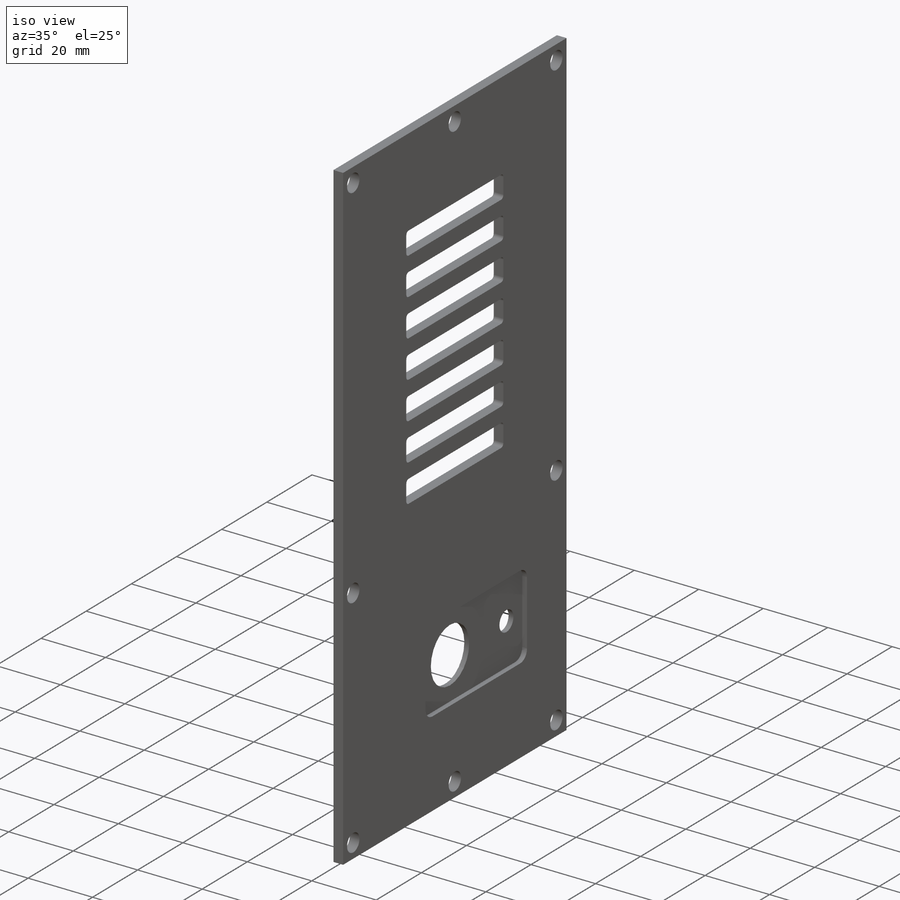
[diagram: iso view]
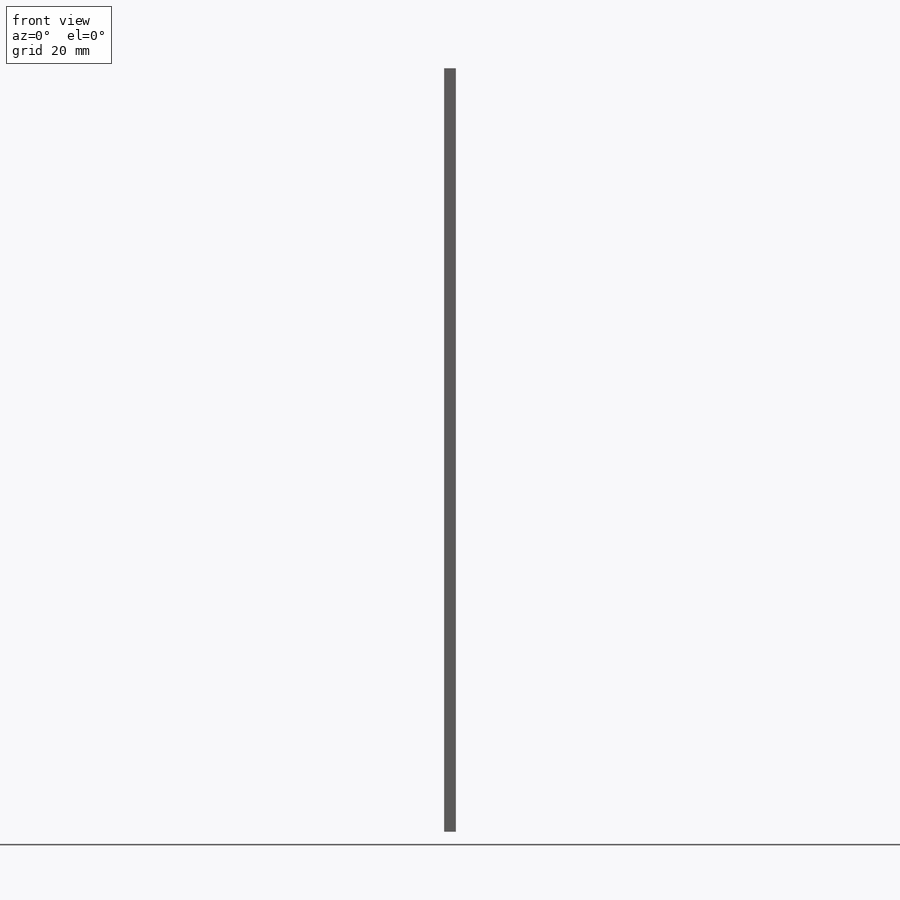
[diagram: front view]
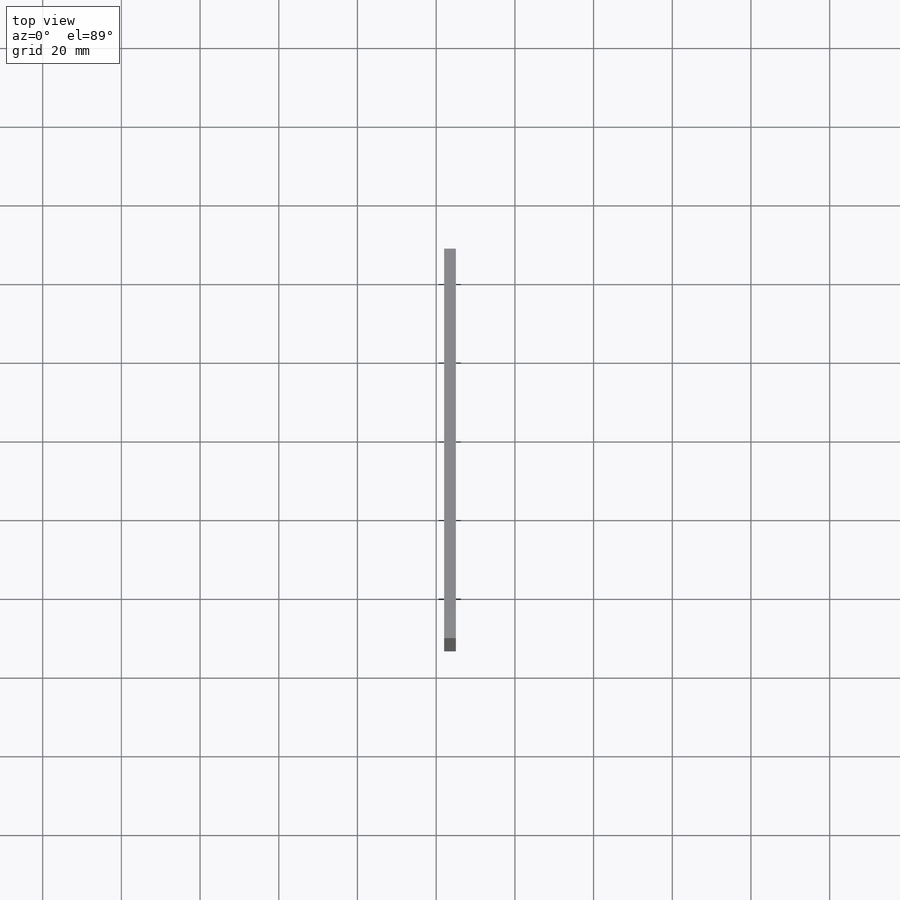
[diagram: top view]
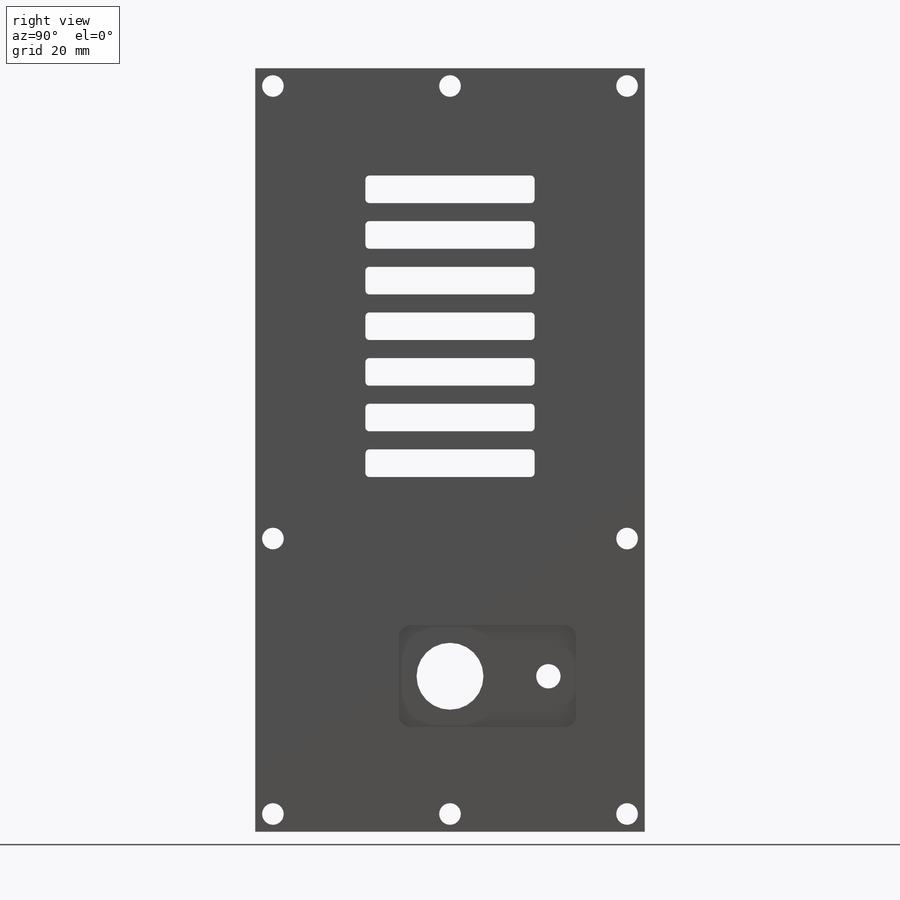
[diagram: right view]
SOLIDWORKS PART (.sldprt)
format: sldprt  version: not decoded by parser v0  size: 325,120 bytes
history: native  units: mm
features: sketch x5, cut_extrude x4, fillet x2, material x1, extrude x1 (+11 scaffold rows collapsed)
feature tree (24):
  scaffold x11  (default folders/planes/origin — collapsed)
  material  "Material <not specified>"
  sketch  "Sketch1"  dims[D1=0.5mm]
  extrude  "Boss-Extrude1"  Depth=3mm
  sketch  "Sketch2"  dims[D1=43.0mm D2=7.0mm]
  cut_extrude  "Cut-Extrude1"  [1 undecoded]
  fillet  "Fillet1"  Radius=1mm
  sketch  "Sketch3"  dims[c1.D3=6.2mm c1.D4=17.0mm c1.D1=30.0mm c1.D2=30.0mm c1.D5=12.5mm c1.D6=195.0mm c2.D5=40.0mm c2.D6=15.0mm c3.D5=49.5mm c3.D1=39.5mm c3.D2=39.5mm]
  cut_extrude  "Cut-Extrude2"  [1 undecoded]
  sketch  "Sketch4"  dims[c1.D1=45.0mm c1.D2=26.0mm c1.D3=0.0mm c1.D4=13.0mm c2.D3=39.5mm c2.D5=40.0mm c2.D6=26.5mm]
  cut_extrude  "Cut-Extrude3"  Depth=1.5mm
  fillet  "Fillet2"  Radius=3mm
  sketch  "Sketch5"  dims[c1.D1=5.5mm c1.D7=5.5mm c1.D8=5.5mm c1.D9=5.5mm c1.D2=4.5mm c1.D3=4.5mm c1.D4=4.5mm c1.D5=4.5mm c1.D6=70.0mm c2.D7=45.0mm c2.D9=45.0mm c2.D10=4.5mm]
  cut_extrude  "Cut-Extrude4"  [1 undecoded]
decode coverage: 9 of 12 modeling features carry decoded parameters
note: 3 parameter values undecoded
summary: no parameter record found for 3 features
note: suppression state not decoded; provenance and decode notes live in map.json
